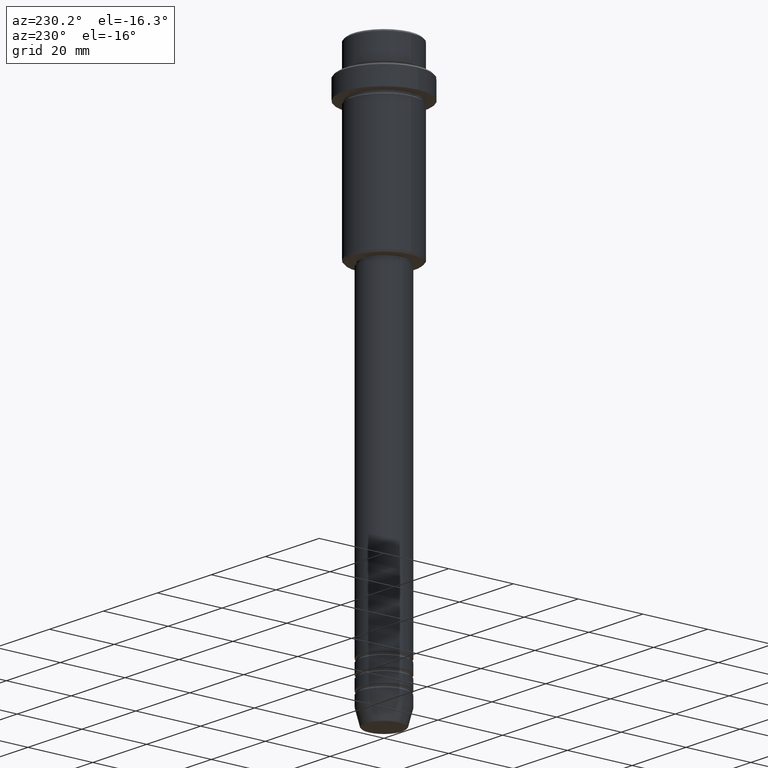
[diagram: clean part render]
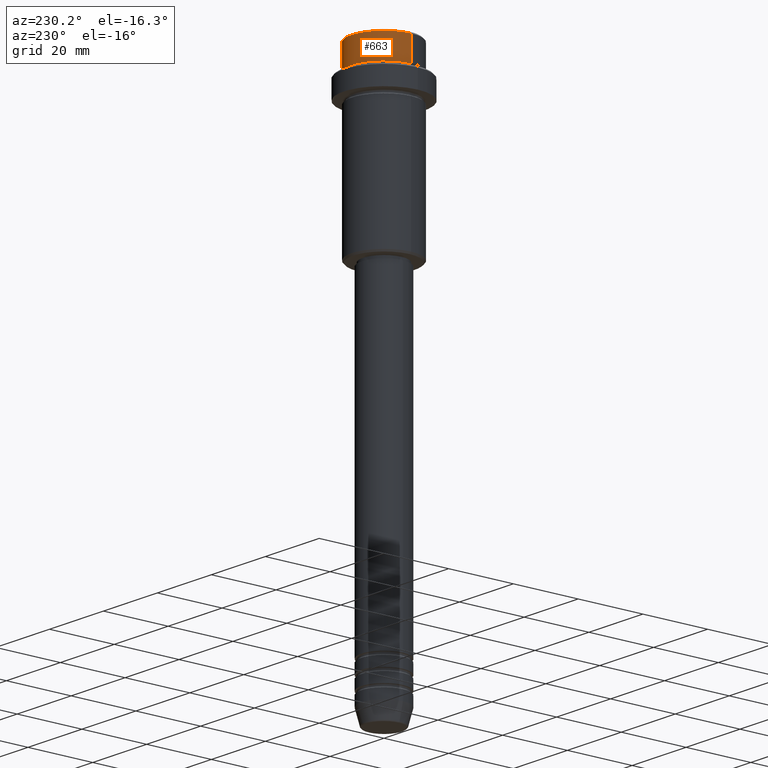
[diagram: same view with one face highlighted and labeled with its STEP entity id]
A machine part, auxiliary view. The second image highlights one B-rep face of the part: STEP entity #663.
In plain terms, the highlighted cylindrical surface (partial cylindrical patch) has radius 10 mm, axis along (-0, -0, 1).
Its self-contained STEP definition (entity closure, byte-faithful):
#11 = CARTESIAN_POINT ( 'NONE',  ( 0.000000000000000000, 0.000000000000000000, -0.4999999999999692468 ) ) ;
#55 = ORIENTED_EDGE ( 'NONE', *, *, #1200, .T. ) ;
#67 = DIRECTION ( 'NONE',  ( -0.000000000000000000, -0.000000000000000000, 1.000000000000000000 ) ) ;
#125 = CARTESIAN_POINT ( 'NONE',  ( 9.999999999999998224, 0.000000000000000000, 0.000000000000000000 ) ) ;
#189 = CARTESIAN_POINT ( 'NONE',  ( 0.000000000000000000, 0.000000000000000000, -7.999999999999998224 ) ) ;
#262 = EDGE_LOOP ( 'NONE', ( #684, #55, #381, #620 ) ) ;
#291 = DIRECTION ( 'NONE',  ( 1.000000000000000000, 0.000000000000000000, 0.000000000000000000 ) ) ;
#296 = VECTOR ( 'NONE', #874, 1000.000000000000000 ) ;
#381 = ORIENTED_EDGE ( 'NONE', *, *, #837, .T. ) ;
#407 = CYLINDRICAL_SURFACE ( 'NONE', #451, 9.999999999999998224 ) ;
#449 = DIRECTION ( 'NONE',  ( 1.000000000000000000, 0.000000000000000000, 0.000000000000000000 ) ) ;
#451 = AXIS2_PLACEMENT_3D ( 'NONE', #1051, #753, #744 ) ;
#477 = VERTEX_POINT ( 'NONE', #618 ) ;
#497 = VERTEX_POINT ( 'NONE', #1156 ) ;
#526 = CARTESIAN_POINT ( 'NONE',  ( 9.999999999999998224, 0.000000000000000000, -0.4999999999999692468 ) ) ;
#538 = LINE ( 'NONE', #125, #296 ) ;
#618 = CARTESIAN_POINT ( 'NONE',  ( -9.999999999999998224, 1.224646799147353059E-15, -7.999999999999998224 ) ) ;
#620 = ORIENTED_EDGE ( 'NONE', *, *, #924, .F. ) ;
#632 = VECTOR ( 'NONE', #67, 1000.000000000000000 ) ;
#638 = FACE_OUTER_BOUND ( 'NONE', #262, .T. ) ;
#663 = ADVANCED_FACE ( 'NONE', ( #638 ), #407, .T. ) ;
#684 = ORIENTED_EDGE ( 'NONE', *, *, #1100, .T. ) ;
#731 = LINE ( 'NONE', #1055, #632 ) ;
#741 = DIRECTION ( 'NONE',  ( -0.000000000000000000, -0.000000000000000000, 1.000000000000000000 ) ) ;
#744 = DIRECTION ( 'NONE',  ( 1.000000000000000000, 0.000000000000000000, 0.000000000000000000 ) ) ;
#753 = DIRECTION ( 'NONE',  ( -0.000000000000000000, -0.000000000000000000, 1.000000000000000000 ) ) ;
#837 = EDGE_CURVE ( 'NONE', #497, #1104, #1294, .T. ) ;
#858 = AXIS2_PLACEMENT_3D ( 'NONE', #11, #893, #449 ) ;
#862 = CIRCLE ( 'NONE', #1204, 9.999999999999998224 ) ;
#874 = DIRECTION ( 'NONE',  ( -0.000000000000000000, -0.000000000000000000, 1.000000000000000000 ) ) ;
#893 = DIRECTION ( 'NONE',  ( 0.000000000000000000, 0.000000000000000000, -1.000000000000000000 ) ) ;
#924 = EDGE_CURVE ( 'NONE', #1098, #1104, #538, .T. ) ;
#934 = CARTESIAN_POINT ( 'NONE',  ( 9.999999999999998224, 0.000000000000000000, -7.999999999999998224 ) ) ;
#1051 = CARTESIAN_POINT ( 'NONE',  ( 0.000000000000000000, 0.000000000000000000, 0.000000000000000000 ) ) ;
#1055 = CARTESIAN_POINT ( 'NONE',  ( -9.999999999999998224, 1.224646799147353059E-15, 0.000000000000000000 ) ) ;
#1098 = VERTEX_POINT ( 'NONE', #934 ) ;
#1100 = EDGE_CURVE ( 'NONE', #1098, #477, #862, .T. ) ;
#1104 = VERTEX_POINT ( 'NONE', #526 ) ;
#1156 = CARTESIAN_POINT ( 'NONE',  ( -9.999999999999998224, 1.224646799147353059E-15, -0.4999999999999692468 ) ) ;
#1200 = EDGE_CURVE ( 'NONE', #477, #497, #731, .T. ) ;
#1204 = AXIS2_PLACEMENT_3D ( 'NONE', #189, #741, #291 ) ;
#1294 = CIRCLE ( 'NONE', #858, 9.999999999999998224 ) ;